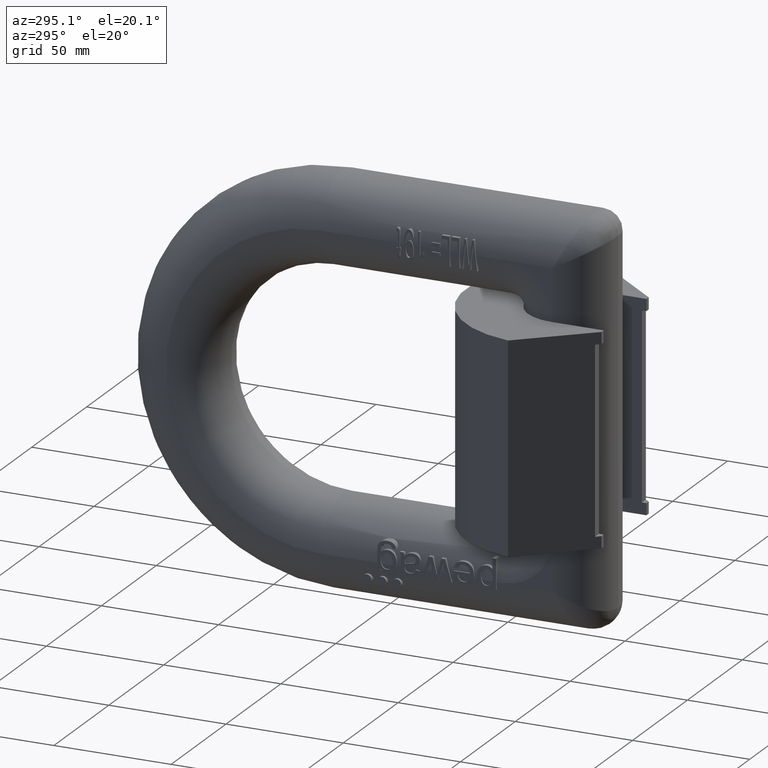
[diagram: clean part render]
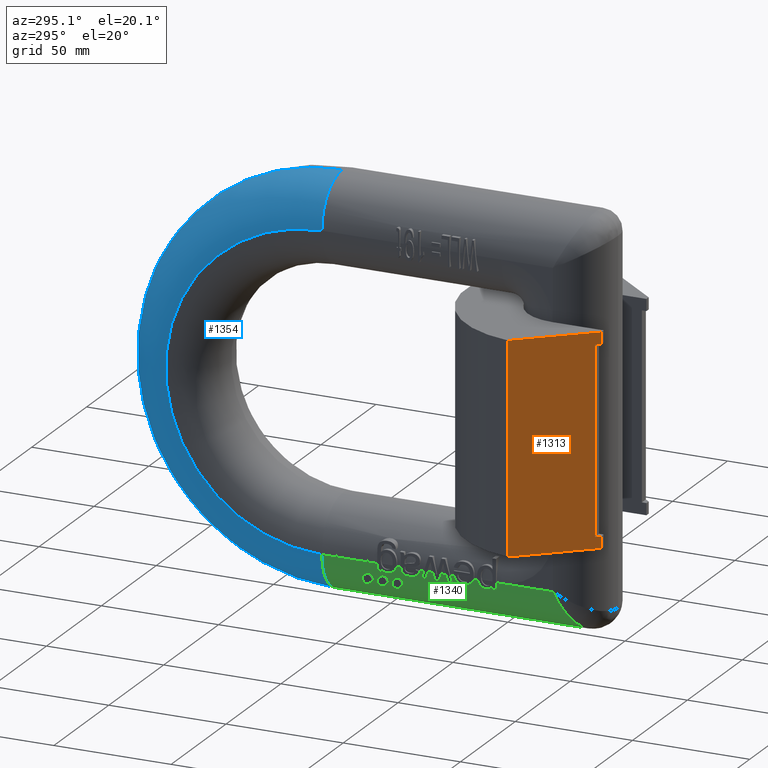
[diagram: same view with three faces highlighted in distinct colors, each labeled with its STEP entity id]
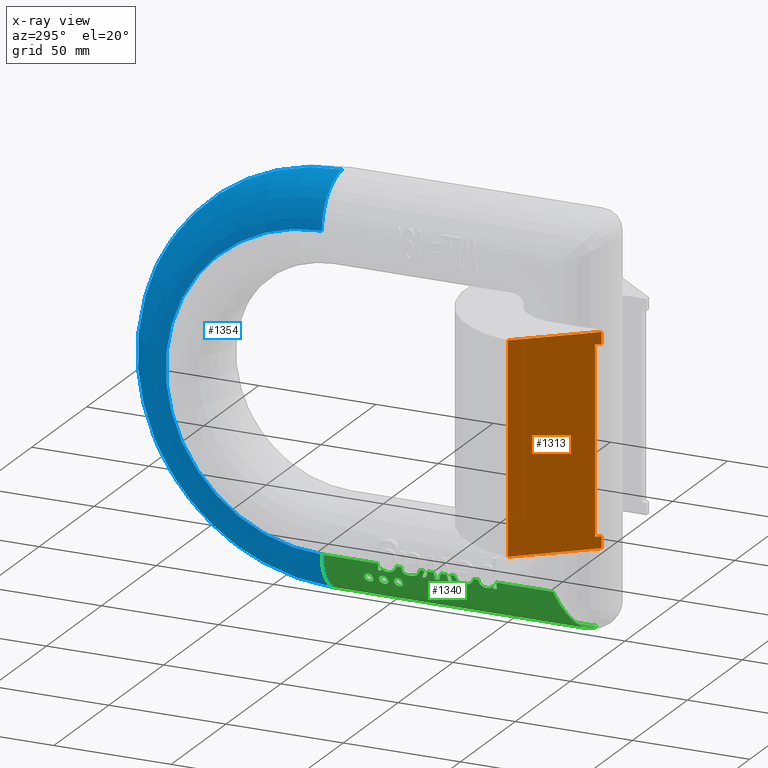
[diagram: x-ray of the same camera — body ghosted, the three highlighted faces saturated]
A machine part, auxiliary view with three faces highlighted in distinct colors.
The next image is the same camera in x-ray (body ghosted, the three faces saturated) — at least one of them is partly hidden behind the body in this view.
Their STEP definitions:

[orange] entity #1313 — the highlighted planar face has unit normal (-0.766, -0.6428, 0).
#1065=PLANE('',#9032);
#1313=ADVANCED_FACE('',(#1843),#1065,.T.);
#1843=FACE_OUTER_BOUND('',#2293,.T.);
#2293=EDGE_LOOP('',(#2966,#2967,#2968,#2969,#2970,#2971,#2972,#2973));
#2966=ORIENTED_EDGE('',*,*,#6386,.T.);
#2967=ORIENTED_EDGE('',*,*,#6382,.T.);
#2968=ORIENTED_EDGE('',*,*,#6394,.F.);
#2969=ORIENTED_EDGE('',*,*,#6424,.F.);
#2970=ORIENTED_EDGE('',*,*,#6407,.F.);
#2971=ORIENTED_EDGE('',*,*,#6401,.F.);
#2972=ORIENTED_EDGE('',*,*,#6404,.T.);
#2973=ORIENTED_EDGE('',*,*,#6426,.F.);
#5510=VERTEX_POINT('',#11219);
#5511=VERTEX_POINT('',#11220);
#5514=VERTEX_POINT('',#11228);
#5520=VERTEX_POINT('',#11242);
#5526=VERTEX_POINT('',#11256);
#5528=VERTEX_POINT('',#11259);
#5530=VERTEX_POINT('',#11265);
#5532=VERTEX_POINT('',#11271);
#6382=EDGE_CURVE('',#5510,#5511,#7698,.T.);
#6386=EDGE_CURVE('',#5514,#5510,#7700,.T.);
#6394=EDGE_CURVE('',#5520,#5511,#7707,.T.);
#6401=EDGE_CURVE('',#5526,#5528,#7713,.T.);
#6404=EDGE_CURVE('',#5526,#5530,#7716,.T.);
#6407=EDGE_CURVE('',#5528,#5532,#7719,.T.);
#6424=EDGE_CURVE('',#5532,#5520,#7736,.T.);
#6426=EDGE_CURVE('',#5514,#5530,#7738,.T.);
#7698=LINE('',#11218,#8276);
#7700=LINE('',#11227,#8278);
#7707=LINE('',#11244,#8285);
#7713=LINE('',#11258,#8291);
#7716=LINE('',#11264,#8294);
#7719=LINE('',#11270,#8297);
#7736=LINE('',#11303,#8314);
#7738=LINE('',#11306,#8316);
#8276=VECTOR('',#9503,1.);
#8278=VECTOR('',#9511,1.);
#8285=VECTOR('',#9522,1.);
#8291=VECTOR('',#9532,1.);
#8294=VECTOR('',#9537,1.);
#8297=VECTOR('',#9542,1.);
#8314=VECTOR('',#9571,1.);
#8316=VECTOR('',#9575,1.);
#9032=AXIS2_PLACEMENT_3D('',#11315,#9589,#9590);
#9503=DIRECTION('',(0.,0.,-1.));
#9511=DIRECTION('',(-0.642787609686539,0.766044443118978,0.));
#9522=DIRECTION('',(-0.642787609686539,0.766044443118978,0.));
#9532=DIRECTION('',(0.,0.,-1.));
#9537=DIRECTION('',(0.642787609686539,-0.766044443118978,0.));
#9542=DIRECTION('',(0.642787609686539,-0.766044443118978,0.));
#9571=DIRECTION('',(0.,0.,-1.));
#9575=DIRECTION('',(0.,0.,-1.));
#9589=DIRECTION('',(-0.766044443118978,-0.642787609686539,0.));
#9590=DIRECTION('',(0.642787609686539,-0.766044443118978,0.));
#11218=CARTESIAN_POINT('',(-45.5202505487029,28.6262198864297,44.5));
#11219=CARTESIAN_POINT('',(-45.5202505487029,28.6262198864297,44.5));
#11220=CARTESIAN_POINT('',(-45.5202505487029,28.6262198864297,-44.5));
#11227=CARTESIAN_POINT('',(-23.4496031930538,2.32344660945499,44.5));
#11228=CARTESIAN_POINT('',(-21.5,0.,44.5));
#11242=CARTESIAN_POINT('',(-21.5,0.,-44.5));
#11244=CARTESIAN_POINT('',(-23.4496031930538,2.32344660945499,-44.5));
#11256=CARTESIAN_POINT('',(-23.1781992623545,1.99999999999997,39.5));
#11258=CARTESIAN_POINT('',(-23.1781992623545,1.99999999999997,39.5));
#11259=CARTESIAN_POINT('',(-23.1781992623545,1.99999999999997,-39.5));
#11264=CARTESIAN_POINT('',(-12.6167179099195,-10.5866833448812,39.5));
#11265=CARTESIAN_POINT('',(-21.5,0.,39.5));
#11270=CARTESIAN_POINT('',(-12.6167179099195,-10.5866833448812,-39.5));
#11271=CARTESIAN_POINT('',(-21.5,-1.46184126872659E-17,-39.5));
#11303=CARTESIAN_POINT('',(-21.5,0.,48.9500275));
#11306=CARTESIAN_POINT('',(-21.5,0.,48.9500275));
#11315=CARTESIAN_POINT('',(-21.5,0.,48.9500275));

[blue] entity #1354 — the highlighted toroidal blend (fillet) surface has major radius 66.6 mm and minor (blend) radius 18.9 mm.
#179=TOROIDAL_SURFACE('',#9156,66.6,18.9);
#1354=ADVANCED_FACE('',(#1881),#179,.T.);
#1881=FACE_OUTER_BOUND('',#2339,.T.);
#2339=EDGE_LOOP('',(#3324,#3325,#3326,#3327));
#2785=CIRCLE('',#9048,85.5);
#2807=CIRCLE('',#9093,66.6);
#2809=CIRCLE('',#9102,18.9);
#2823=CIRCLE('',#9124,18.9);
#3324=ORIENTED_EDGE('',*,*,#6641,.T.);
#3325=ORIENTED_EDGE('',*,*,#6558,.F.);
#3326=ORIENTED_EDGE('',*,*,#6573,.F.);
#3327=ORIENTED_EDGE('',*,*,#6458,.F.);
#5561=VERTEX_POINT('',#11367);
#5563=VERTEX_POINT('',#11373);
#5647=VERTEX_POINT('',#11710);
#5648=VERTEX_POINT('',#11712);
#6458=EDGE_CURVE('',#5563,#5561,#2785,.T.);
#6558=EDGE_CURVE('',#5647,#5648,#2807,.T.);
#6573=EDGE_CURVE('',#5561,#5647,#2809,.T.);
#6641=EDGE_CURVE('',#5563,#5648,#2823,.T.);
#9048=AXIS2_PLACEMENT_3D('',#11374,#9642,#9643);
#9093=AXIS2_PLACEMENT_3D('',#11711,#9782,#9783);
#9102=AXIS2_PLACEMENT_3D('',#11745,#9807,#9808);
#9124=AXIS2_PLACEMENT_3D('',#12183,#9869,#9870);
#9156=AXIS2_PLACEMENT_3D('',#12855,#9954,#9955);
#9642=DIRECTION('',(1.,0.,0.));
#9643=DIRECTION('',(0.,0.,1.));
#9782=DIRECTION('',(-1.,0.,0.));
#9783=DIRECTION('',(0.,0.,1.));
#9807=DIRECTION('',(0.,-1.,0.));
#9808=DIRECTION('',(0.,0.,-1.));
#9869=DIRECTION('',(0.,1.,0.));
#9870=DIRECTION('',(0.,0.,1.));
#9954=DIRECTION('',(-1.,0.,0.));
#9955=DIRECTION('',(0.,0.,1.));
#11367=CARTESIAN_POINT('',(-0.0999999999999994,120.5,85.5));
#11373=CARTESIAN_POINT('',(-0.0999999999999994,120.5,-85.5));
#11374=CARTESIAN_POINT('',(-0.0999999999999994,120.5,0.));
#11710=CARTESIAN_POINT('',(-19.,120.5,66.6));
#11711=CARTESIAN_POINT('',(-19.,120.5,0.));
#11712=CARTESIAN_POINT('',(-19.,120.5,-66.6));
#11745=CARTESIAN_POINT('',(-0.0999999999999994,120.5,66.6));
#12183=CARTESIAN_POINT('',(-0.0999999999999994,120.5,-66.6));
#12855=CARTESIAN_POINT('',(-0.0999999999999994,120.5,0.));

[green] entity #1340 — the highlighted cylindrical surface (partial cylindrical patch) has radius 18.9 mm, axis along (0, 1, 0).
#195=FACE_BOUND('',#2322,.T.);
#196=FACE_BOUND('',#2323,.T.);
#197=FACE_BOUND('',#2324,.T.);
#198=FACE_BOUND('',#2325,.T.);
#254=ELLIPSE('',#9118,19.7957466956616,18.9);
#255=ELLIPSE('',#9119,19.6097194483775,18.9);
#256=ELLIPSE('',#9120,19.5407106279948,18.9);
#257=ELLIPSE('',#9121,19.8324421808189,18.9);
#258=ELLIPSE('',#9122,142.187757151098,18.9);
#259=ELLIPSE('',#9125,21.3358852640335,18.9);
#347=B_SPLINE_CURVE_WITH_KNOTS('',3,(#11961,#11962,#11963,#11964,#11965,
#11966,#11967,#11968,#11969,#11970,#11971,#11972,#11973,#11974,#11975,#11976,
#11977,#11978,#11979,#11980,#11981,#11982,#11983,#11984,#11985,#11986,#11987,
#11988,#11989,#11990,#11991,#11992,#11993,#11994,#11995,#11996,#11997,#11998,
#11999,#12000,#12001,#12002,#12003,#12004,#12005,#12006,#12007,#12008,#12009,
#12010,#12011,#12012,#12013,#12014,#12015,#12016,#12017,#12018),
 .UNSPECIFIED.,.T.,.F.,(1,3,3,3,3,3,3,3,3,3,3,3,3,3,3,3,3,3,3,3,3,1),(-0.029145250167857,
0.,0.0476612080218704,0.0951530764495043,0.145130585117094,0.20047670285001,
0.259977056874677,0.320036639998184,0.377389936324416,0.431291938532448,
0.482734047581275,0.532933986330721,0.582819489933847,0.633168334785339,
0.684850036378347,0.738873616524706,0.796014757772482,0.855863960728396,
0.915638742646773,0.970854749832143,1.,1.04766120802187),.UNSPECIFIED.);
#348=B_SPLINE_CURVE_WITH_KNOTS('',3,(#12026,#12027,#12028,#12029,#12030,
#12031,#12032,#12033,#12034,#12035),.UNSPECIFIED.,.F.,.F.,(4,3,3,4),(0.,
0.275216928750496,0.550192957856796,1.),.UNSPECIFIED.);
#349=B_SPLINE_CURVE_WITH_KNOTS('',3,(#12037,#12038,#12039,#12040,#12041,
#12042,#12043,#12044,#12045,#12046,#12047,#12048,#12049),.UNSPECIFIED.,
 .F.,.F.,(4,3,3,3,4),(0.,0.322270608418438,0.642712611835654,0.909671209587515,
1.),.UNSPECIFIED.);
#350=B_SPLINE_CURVE_WITH_KNOTS('',3,(#12051,#12052,#12053,#12054),
 .UNSPECIFIED.,.F.,.F.,(4,4),(0.,1.),.UNSPECIFIED.);
#351=B_SPLINE_CURVE_WITH_KNOTS('',3,(#12058,#12059,#12060,#12061,#12062,
#12063,#12064,#12065,#12066,#12067),.UNSPECIFIED.,.F.,.F.,(4,2,2,2,4),(0.,
0.25,0.5,0.75,1.),.UNSPECIFIED.);
#352=B_SPLINE_CURVE_WITH_KNOTS('',3,(#12075,#12076,#12077,#12078),
 .UNSPECIFIED.,.F.,.F.,(4,4),(0.,1.),.UNSPECIFIED.);
#353=B_SPLINE_CURVE_WITH_KNOTS('',3,(#12090,#12091,#12092,#12093),
 .UNSPECIFIED.,.F.,.F.,(4,4),(0.,1.),.UNSPECIFIED.);
#354=B_SPLINE_CURVE_WITH_KNOTS('',3,(#12103,#12104,#12105,#12106,#12107,
#12108,#12109,#12110,#12111,#12112),.UNSPECIFIED.,.F.,.F.,(4,3,3,4),(0.,
0.28896218980566,0.577252958959153,1.),.UNSPECIFIED.);
#355=B_SPLINE_CURVE_WITH_KNOTS('',3,(#12114,#12115,#12116,#12117,#12118,
#12119,#12120,#12121,#12122,#12123),.UNSPECIFIED.,.F.,.F.,(4,3,3,4),(0.,
0.285230832041793,0.570959805638734,1.),.UNSPECIFIED.);
#356=B_SPLINE_CURVE_WITH_KNOTS('',3,(#12125,#12126,#12127,#12128,#12129,
#12130),.UNSPECIFIED.,.F.,.F.,(4,2,4),(0.,0.5,1.),.UNSPECIFIED.);
#357=B_SPLINE_CURVE_WITH_KNOTS('',3,(#12132,#12133,#12134,#12135,#12136,
#12137,#12138,#12139,#12140,#12141),.UNSPECIFIED.,.F.,.F.,(4,3,3,4),(0.,
0.30576446401451,0.609705076223032,1.),.UNSPECIFIED.);
#358=B_SPLINE_CURVE_WITH_KNOTS('',3,(#12143,#12144,#12145,#12146,#12147,
#12148,#12149,#12150,#12151,#12152),.UNSPECIFIED.,.F.,.F.,(4,3,3,4),(0.,
0.277703927595994,0.555681236900917,1.),.UNSPECIFIED.);
#359=B_SPLINE_CURVE_WITH_KNOTS('',3,(#12154,#12155,#12156,#12157),
 .UNSPECIFIED.,.F.,.F.,(4,4),(0.,1.),.UNSPECIFIED.);
#360=B_SPLINE_CURVE_WITH_KNOTS('',3,(#12161,#12162,#12163,#12164),
 .UNSPECIFIED.,.F.,.F.,(4,4),(0.,1.),.UNSPECIFIED.);
#361=B_SPLINE_CURVE_WITH_KNOTS('',3,(#12166,#12167,#12168,#12169,#12170,
#12171,#12172,#12173),.UNSPECIFIED.,.F.,.F.,(4,2,2,4),(0.,0.25,0.5,1.),
 .UNSPECIFIED.);
#362=B_SPLINE_CURVE_WITH_KNOTS('',3,(#12179,#12180,#12181,#12182),
 .UNSPECIFIED.,.F.,.F.,(4,4),(0.,1.),.UNSPECIFIED.);
#363=B_SPLINE_CURVE_WITH_KNOTS('',3,(#12185,#12186,#12187,#12188,#12189,
#12190,#12191,#12192,#12193,#12194,#12195,#12196,#12197,#12198,#12199,#12200,
#12201,#12202,#12203,#12204,#12205,#12206,#12207,#12208,#12209,#12210,#12211,
#12212,#12213,#12214,#12215,#12216,#12217,#12218,#12219,#12220,#12221,#12222,
#12223,#12224,#12225,#12226,#12227,#12228,#12229,#12230,#12231,#12232,#12233,
#12234,#12235,#12236,#12237,#12238,#12239,#12240,#12241,#12242),
 .UNSPECIFIED.,.T.,.F.,(1,3,3,3,3,3,3,3,3,3,3,3,3,3,3,3,3,3,3,3,3,1),(-0.029145250167857,
0.,0.0476612080218704,0.0951530764495043,0.145130585117094,0.20047670285001,
0.259977056874677,0.320036639998184,0.377389936324416,0.431291938532448,
0.482734047581275,0.532933986330721,0.582819489933847,0.633168334785339,
0.684850036378347,0.738873616524706,0.796014757772482,0.855863960728396,
0.915638742646773,0.970854749832143,1.,1.04766120802187),.UNSPECIFIED.);
#364=B_SPLINE_CURVE_WITH_KNOTS('',3,(#12244,#12245,#12246,#12247,#12248,
#12249,#12250,#12251,#12252,#12253,#12254,#12255,#12256,#12257,#12258,#12259,
#12260,#12261,#12262,#12263,#12264,#12265,#12266,#12267,#12268,#12269,#12270,
#12271,#12272,#12273,#12274,#12275,#12276,#12277,#12278,#12279,#12280,#12281,
#12282,#12283,#12284,#12285,#12286,#12287,#12288,#12289,#12290,#12291,#12292,
#12293,#12294,#12295,#12296,#12297,#12298,#12299,#12300,#12301),
 .UNSPECIFIED.,.T.,.F.,(1,3,3,3,3,3,3,3,3,3,3,3,3,3,3,3,3,3,3,3,3,1),(-0.029145250167857,
0.,0.0476612080218704,0.0951530764495043,0.145130585117094,0.20047670285001,
0.259977056874677,0.320036639998184,0.377389936324416,0.431291938532448,
0.482734047581275,0.532933986330721,0.582819489933847,0.633168334785339,
0.684850036378347,0.738873616524706,0.796014757772482,0.855863960728396,
0.915638742646773,0.970854749832143,1.,1.04766120802187),.UNSPECIFIED.);
#1340=ADVANCED_FACE('',(#195,#196,#197,#198),#1780,.T.);
#1780=CYLINDRICAL_SURFACE('',#9126,18.9);
#2322=EDGE_LOOP('',(#3183));
#2323=EDGE_LOOP('',(#3184,#3185,#3186,#3187,#3188,#3189,#3190,#3191,#3192,
#3193,#3194,#3195,#3196,#3197,#3198,#3199,#3200,#3201,#3202,#3203,#3204,
#3205,#3206,#3207,#3208,#3209,#3210,#3211,#3212,#3213,#3214,#3215,#3216,
#3217,#3218,#3219,#3220,#3221,#3222));
#2324=EDGE_LOOP('',(#3223));
#2325=EDGE_LOOP('',(#3224));
#2820=CIRCLE('',#9116,18.9);
#2821=CIRCLE('',#9117,18.9);
#2822=CIRCLE('',#9123,18.9);
#2823=CIRCLE('',#9124,18.9);
#3183=ORIENTED_EDGE('',*,*,#6606,.T.);
#3184=ORIENTED_EDGE('',*,*,#6607,.F.);
#3185=ORIENTED_EDGE('',*,*,#6608,.F.);
#3186=ORIENTED_EDGE('',*,*,#6609,.F.);
#3187=ORIENTED_EDGE('',*,*,#6610,.F.);
#3188=ORIENTED_EDGE('',*,*,#6611,.F.);
#3189=ORIENTED_EDGE('',*,*,#6612,.F.);
#3190=ORIENTED_EDGE('',*,*,#6613,.F.);
#3191=ORIENTED_EDGE('',*,*,#6614,.F.);
#3192=ORIENTED_EDGE('',*,*,#6615,.F.);
#3193=ORIENTED_EDGE('',*,*,#6616,.F.);
#3194=ORIENTED_EDGE('',*,*,#6617,.F.);
#3195=ORIENTED_EDGE('',*,*,#6618,.F.);
#3196=ORIENTED_EDGE('',*,*,#6619,.F.);
#3197=ORIENTED_EDGE('',*,*,#6620,.F.);
#3198=ORIENTED_EDGE('',*,*,#6621,.F.);
#3199=ORIENTED_EDGE('',*,*,#6622,.F.);
#3200=ORIENTED_EDGE('',*,*,#6623,.F.);
#3201=ORIENTED_EDGE('',*,*,#6624,.F.);
#3202=ORIENTED_EDGE('',*,*,#6625,.F.);
#3203=ORIENTED_EDGE('',*,*,#6626,.F.);
#3204=ORIENTED_EDGE('',*,*,#6627,.F.);
#3205=ORIENTED_EDGE('',*,*,#6628,.F.);
#3206=ORIENTED_EDGE('',*,*,#6629,.F.);
#3207=ORIENTED_EDGE('',*,*,#6630,.F.);
#3208=ORIENTED_EDGE('',*,*,#6631,.F.);
#3209=ORIENTED_EDGE('',*,*,#6632,.F.);
#3210=ORIENTED_EDGE('',*,*,#6633,.F.);
#3211=ORIENTED_EDGE('',*,*,#6634,.F.);
#3212=ORIENTED_EDGE('',*,*,#6635,.F.);
#3213=ORIENTED_EDGE('',*,*,#6636,.F.);
#3214=ORIENTED_EDGE('',*,*,#6637,.F.);
#3215=ORIENTED_EDGE('',*,*,#6638,.F.);
#3216=ORIENTED_EDGE('',*,*,#6639,.F.);
#3217=ORIENTED_EDGE('',*,*,#6640,.F.);
#3218=ORIENTED_EDGE('',*,*,#6559,.F.);
#3219=ORIENTED_EDGE('',*,*,#6641,.F.);
#3220=ORIENTED_EDGE('',*,*,#6461,.F.);
#3221=ORIENTED_EDGE('',*,*,#6642,.F.);
#3222=ORIENTED_EDGE('',*,*,#6473,.F.);
#3223=ORIENTED_EDGE('',*,*,#6643,.T.);
#3224=ORIENTED_EDGE('',*,*,#6644,.T.);
#5563=VERTEX_POINT('',#11373);
#5565=VERTEX_POINT('',#11379);
#5573=VERTEX_POINT('',#11402);
#5574=VERTEX_POINT('',#11404);
#5648=VERTEX_POINT('',#11712);
#5649=VERTEX_POINT('',#11714);
#5685=VERTEX_POINT('',#12019);
#5686=VERTEX_POINT('',#12021);
#5687=VERTEX_POINT('',#12023);
#5688=VERTEX_POINT('',#12025);
#5689=VERTEX_POINT('',#12036);
#5690=VERTEX_POINT('',#12050);
#5691=VERTEX_POINT('',#12055);
#5692=VERTEX_POINT('',#12057);
#5693=VERTEX_POINT('',#12068);
#5694=VERTEX_POINT('',#12070);
#5695=VERTEX_POINT('',#12072);
#5696=VERTEX_POINT('',#12074);
#5697=VERTEX_POINT('',#12079);
#5698=VERTEX_POINT('',#12081);
#5699=VERTEX_POINT('',#12083);
#5700=VERTEX_POINT('',#12085);
#5701=VERTEX_POINT('',#12087);
#5702=VERTEX_POINT('',#12089);
#5703=VERTEX_POINT('',#12094);
#5704=VERTEX_POINT('',#12096);
#5705=VERTEX_POINT('',#12098);
#5706=VERTEX_POINT('',#12100);
#5707=VERTEX_POINT('',#12102);
#5708=VERTEX_POINT('',#12113);
#5709=VERTEX_POINT('',#12124);
#5710=VERTEX_POINT('',#12131);
#5711=VERTEX_POINT('',#12142);
#5712=VERTEX_POINT('',#12153);
#5713=VERTEX_POINT('',#12158);
#5714=VERTEX_POINT('',#12160);
#5715=VERTEX_POINT('',#12165);
#5716=VERTEX_POINT('',#12174);
#5717=VERTEX_POINT('',#12176);
#5718=VERTEX_POINT('',#12178);
#5719=VERTEX_POINT('',#12243);
#5720=VERTEX_POINT('',#12302);
#6461=EDGE_CURVE('',#5565,#5563,#7765,.T.);
#6473=EDGE_CURVE('',#5573,#5574,#7771,.T.);
#6559=EDGE_CURVE('',#5648,#5649,#7813,.T.);
#6606=EDGE_CURVE('',#5685,#5685,#347,.T.);
#6607=EDGE_CURVE('',#5686,#5573,#2820,.T.);
#6608=EDGE_CURVE('',#5687,#5686,#7827,.T.);
#6609=EDGE_CURVE('',#5688,#5687,#2821,.T.);
#6610=EDGE_CURVE('',#5689,#5688,#348,.T.);
#6611=EDGE_CURVE('',#5690,#5689,#349,.T.);
#6612=EDGE_CURVE('',#5691,#5690,#350,.T.);
#6613=EDGE_CURVE('',#5692,#5691,#7828,.T.);
#6614=EDGE_CURVE('',#5693,#5692,#351,.T.);
#6615=EDGE_CURVE('',#5694,#5693,#7829,.T.);
#6616=EDGE_CURVE('',#5695,#5694,#254,.T.);
#6617=EDGE_CURVE('',#5696,#5695,#7830,.T.);
#6618=EDGE_CURVE('',#5697,#5696,#352,.T.);
#6619=EDGE_CURVE('',#5698,#5697,#7831,.T.);
#6620=EDGE_CURVE('',#5699,#5698,#255,.T.);
#6621=EDGE_CURVE('',#5700,#5699,#7832,.T.);
#6622=EDGE_CURVE('',#5701,#5700,#256,.T.);
#6623=EDGE_CURVE('',#5702,#5701,#7833,.T.);
#6624=EDGE_CURVE('',#5703,#5702,#353,.T.);
#6625=EDGE_CURVE('',#5704,#5703,#7834,.T.);
#6626=EDGE_CURVE('',#5705,#5704,#257,.T.);
#6627=EDGE_CURVE('',#5706,#5705,#7835,.T.);
#6628=EDGE_CURVE('',#5707,#5706,#258,.T.);
#6629=EDGE_CURVE('',#5708,#5707,#354,.T.);
#6630=EDGE_CURVE('',#5709,#5708,#355,.T.);
#6631=EDGE_CURVE('',#5710,#5709,#356,.T.);
#6632=EDGE_CURVE('',#5711,#5710,#357,.T.);
#6633=EDGE_CURVE('',#5712,#5711,#358,.T.);
#6634=EDGE_CURVE('',#5713,#5712,#359,.T.);
#6635=EDGE_CURVE('',#5714,#5713,#7836,.T.);
#6636=EDGE_CURVE('',#5715,#5714,#360,.T.);
#6637=EDGE_CURVE('',#5716,#5715,#361,.T.);
#6638=EDGE_CURVE('',#5717,#5716,#2822,.T.);
#6639=EDGE_CURVE('',#5718,#5717,#7837,.T.);
#6640=EDGE_CURVE('',#5649,#5718,#362,.T.);
#6641=EDGE_CURVE('',#5563,#5648,#2823,.T.);
#6642=EDGE_CURVE('',#5574,#5565,#259,.T.);
#6643=EDGE_CURVE('',#5719,#5719,#363,.T.);
#6644=EDGE_CURVE('',#5720,#5720,#364,.T.);
#7765=LINE('',#11380,#8343);
#7771=LINE('',#11403,#8349);
#7813=LINE('',#11713,#8391);
#7827=LINE('',#12022,#8405);
#7828=LINE('',#12056,#8406);
#7829=LINE('',#12069,#8407);
#7830=LINE('',#12073,#8408);
#7831=LINE('',#12080,#8409);
#7832=LINE('',#12084,#8410);
#7833=LINE('',#12088,#8411);
#7834=LINE('',#12095,#8412);
#7835=LINE('',#12099,#8413);
#7836=LINE('',#12159,#8414);
#7837=LINE('',#12177,#8415);
#8343=VECTOR('',#9648,1.);
#8349=VECTOR('',#9672,1.);
#8391=VECTOR('',#9784,1.);
#8405=VECTOR('',#9844,1.);
#8406=VECTOR('',#9847,1.);
#8407=VECTOR('',#9848,1.);
#8408=VECTOR('',#9851,1.);
#8409=VECTOR('',#9852,1.);
#8410=VECTOR('',#9855,1.);
#8411=VECTOR('',#9858,1.);
#8412=VECTOR('',#9859,1.);
#8413=VECTOR('',#9862,1.);
#8414=VECTOR('',#9865,1.);
#8415=VECTOR('',#9868,1.);
#9116=AXIS2_PLACEMENT_3D('',#12020,#9842,#9843);
#9117=AXIS2_PLACEMENT_3D('',#12024,#9845,#9846);
#9118=AXIS2_PLACEMENT_3D('',#12071,#9849,#9850);
#9119=AXIS2_PLACEMENT_3D('',#12082,#9853,#9854);
#9120=AXIS2_PLACEMENT_3D('',#12086,#9856,#9857);
#9121=AXIS2_PLACEMENT_3D('',#12097,#9860,#9861);
#9122=AXIS2_PLACEMENT_3D('',#12101,#9863,#9864);
#9123=AXIS2_PLACEMENT_3D('',#12175,#9866,#9867);
#9124=AXIS2_PLACEMENT_3D('',#12183,#9869,#9870);
#9125=AXIS2_PLACEMENT_3D('',#12184,#9871,#9872);
#9126=AXIS2_PLACEMENT_3D('',#12303,#9873,#9874);
#9648=DIRECTION('',(0.,1.,0.));
#9672=DIRECTION('',(0.,-1.,0.));
#9784=DIRECTION('',(0.,-1.,0.));
#9842=DIRECTION('',(0.,1.,0.));
#9843=DIRECTION('',(0.,0.,-1.));
#9844=DIRECTION('',(0.,-1.,0.));
#9845=DIRECTION('',(0.,-1.,0.));
#9846=DIRECTION('',(0.,0.,1.));
#9847=DIRECTION('',(0.,-1.,0.));
#9848=DIRECTION('',(0.,-1.,0.));
#9849=DIRECTION('',(0.,0.954750547709428,-0.297407786798778));
#9850=DIRECTION('',(0.,0.297407786798778,0.954750547709428));
#9851=DIRECTION('',(0.,-1.,0.));
#9852=DIRECTION('',(0.,-1.,0.));
#9853=DIRECTION('',(0.,0.96380777143468,0.266598161513008));
#9854=DIRECTION('',(0.,0.266598161513008,-0.96380777143468));
#9855=DIRECTION('',(0.,-1.,0.));
#9856=DIRECTION('',(0.,-0.967211498077407,0.253972277988876));
#9857=DIRECTION('',(0.,0.253972277988876,0.967211498077407));
#9858=DIRECTION('',(0.,-1.,0.));
#9859=DIRECTION('',(0.,-1.,0.));
#9860=DIRECTION('',(0.,-0.952983996004249,-0.303020631904455));
#9861=DIRECTION('',(0.,0.303020631904455,-0.952983996004248));
#9862=DIRECTION('',(0.,-1.,0.));
#9863=DIRECTION('',(0.,0.132922836527448,-0.991126389281154));
#9864=DIRECTION('',(0.,0.991126389281154,0.132922836527448));
#9865=DIRECTION('',(0.,-1.,0.));
#9866=DIRECTION('',(0.,1.,0.));
#9867=DIRECTION('',(0.,0.,-1.));
#9868=DIRECTION('',(0.,-1.,0.));
#9869=DIRECTION('',(0.,1.,0.));
#9870=DIRECTION('',(0.,0.,1.));
#9871=DIRECTION('',(0.,-0.885831535280155,0.464006994670557));
#9872=DIRECTION('',(0.,-0.464006994670557,-0.885831535280155));
#9873=DIRECTION('',(0.,1.,0.));
#9874=DIRECTION('',(0.,0.,1.));
#11373=CARTESIAN_POINT('',(-0.0999999999999994,120.5,-85.5));
#11379=CARTESIAN_POINT('',(-0.0999999999999994,12.,-85.5));
#11380=CARTESIAN_POINT('',(-0.0999999999999994,120.5,-85.5));
#11402=CARTESIAN_POINT('',(-19.,45.9166666666667,-66.6));
#11403=CARTESIAN_POINT('',(-19.,12.,-66.6));
#11404=CARTESIAN_POINT('',(-19.,21.9,-66.6));
#11712=CARTESIAN_POINT('',(-19.,120.5,-66.6));
#11713=CARTESIAN_POINT('',(-19.,12.,-66.6));
#11714=CARTESIAN_POINT('',(-19.,96.5833333333333,-66.6));
#11961=CARTESIAN_POINT('',(-16.8438214143473,88.35,-75.3666666666667));
#11962=CARTESIAN_POINT('',(-16.8438214143473,88.5459940572378,-75.3666666666667));
#11963=CARTESIAN_POINT('',(-16.8603505103731,88.7446894714339,-75.3352768952935));
#11964=CARTESIAN_POINT('',(-16.8908415760015,88.929085790433,-75.2762687354427));
#11965=CARTESIAN_POINT('',(-16.9212714796342,89.113112229055,-75.2173789399961));
#11966=CARTESIAN_POINT('',(-16.9661851409539,89.2878552052964,-75.1297344182328));
#11967=CARTESIAN_POINT('',(-17.0199716146623,89.4417683711881,-75.0216720761985));
#11968=CARTESIAN_POINT('',(-17.0765967220163,89.6038044546289,-74.9079066385946));
#11969=CARTESIAN_POINT('',(-17.1442883509629,89.7469235969012,-74.7689067048614));
#11970=CARTESIAN_POINT('',(-17.2162606877049,89.863553466213,-74.6152117919946));
#11971=CARTESIAN_POINT('',(-17.2958610797373,89.9925444610892,-74.4452273803248));
#11972=CARTESIAN_POINT('',(-17.3826218063119,90.0924464050409,-74.2530142562028));
#11973=CARTESIAN_POINT('',(-17.4686891832461,90.1574532795239,-74.0524248440217));
#11974=CARTESIAN_POINT('',(-17.56105352504,90.2272162650776,-73.8371596682152));
#11975=CARTESIAN_POINT('',(-17.6551008234313,90.2585528704466,-73.6062871566454));
#11976=CARTESIAN_POINT('',(-17.7426747989694,90.247946292735,-73.3783497945894));
#11977=CARTESIAN_POINT('',(-17.8309647928202,90.2372529940103,-73.1485487815529));
#11978=CARTESIAN_POINT('',(-17.9152434851729,90.1832920063107,-72.9149665461617));
#11979=CARTESIAN_POINT('',(-17.988628578184,90.0883443359497,-72.6997514368847));
#11980=CARTESIAN_POINT('',(-18.0587176707906,89.9976611224026,-72.4942024472262));
#11981=CARTESIAN_POINT('',(-18.1210117657982,89.8666504842041,-72.2993478807283));
#11982=CARTESIAN_POINT('',(-18.1712559100353,89.7055449763142,-72.1353147908693));
#11983=CARTESIAN_POINT('',(-18.2185239593276,89.5539821782244,-71.9809978193145));
#11984=CARTESIAN_POINT('',(-18.2566153040798,89.3712840509629,-71.8494870985551));
#11985=CARTESIAN_POINT('',(-18.2836043701997,89.1732305740478,-71.7542731891175));
#11986=CARTESIAN_POINT('',(-18.3093861804424,88.9840362856258,-71.6633183211469));
#11987=CARTESIAN_POINT('',(-18.3258549424293,88.7754362976937,-71.6028820512418));
#11988=CARTESIAN_POINT('',(-18.3323995912918,88.5654011401458,-71.5789160610983));
#11989=CARTESIAN_POINT('',(-18.3387900826217,88.3603133070972,-71.5555145837323));
#11990=CARTESIAN_POINT('',(-18.3359230589737,88.1481540351792,-71.5662027896535));
#11991=CARTESIAN_POINT('',(-18.3238920390479,87.9466856108135,-71.609965962871));
#11992=CARTESIAN_POINT('',(-18.3119320338767,87.7464063816109,-71.6534708179225));
#11993=CARTESIAN_POINT('',(-18.2905641308894,87.5512438199478,-71.73079890503));
#11994=CARTESIAN_POINT('',(-18.2605780887094,87.3768113690368,-71.8348260223132));
#11995=CARTESIAN_POINT('',(-18.2303064307013,87.2007174561485,-71.9398439936437));
#11996=CARTESIAN_POINT('',(-18.1903956348328,87.0410547720096,-72.0747823819532));
#11997=CARTESIAN_POINT('',(-18.1427013812356,86.9095334459216,-72.2276928547637));
#11998=CARTESIAN_POINT('',(-18.0937396553036,86.7745169473611,-72.38466691552));
#11999=CARTESIAN_POINT('',(-18.0352628177977,86.6655819039327,-72.5645459481649));
#12000=CARTESIAN_POINT('',(-17.9705986999961,86.589379213732,-72.7523736966879));
#12001=CARTESIAN_POINT('',(-17.9030161952578,86.5097373838169,-72.9486783883177));
#12002=CARTESIAN_POINT('',(-17.8269280163954,86.4636742629626,-73.1586086747106));
#12003=CARTESIAN_POINT('',(-17.747421819422,86.4526696493362,-73.3659813129649));
#12004=CARTESIAN_POINT('',(-17.6633828008516,86.4410376386991,-73.5851767173564));
#12005=CARTESIAN_POINT('',(-17.5733319021484,86.4681460651076,-73.8072162087207));
#12006=CARTESIAN_POINT('',(-17.4844709840962,86.5310049844034,-74.0155356248296));
#12007=CARTESIAN_POINT('',(-17.3915208542674,86.5967565525564,-74.2334415073888));
#12008=CARTESIAN_POINT('',(-17.2972838345933,86.7035065727495,-74.442457021255));
#12009=CARTESIAN_POINT('',(-17.2116185153739,86.8440147618652,-74.6251175557941));
#12010=CARTESIAN_POINT('',(-17.1261995709952,86.9841188471611,-74.8072527556876));
#12011=CARTESIAN_POINT('',(-17.046781383587,87.1625230676331,-74.9687236285173));
#12012=CARTESIAN_POINT('',(-16.9849574378366,87.3654130580758,-75.0916554524102));
#12013=CARTESIAN_POINT('',(-16.9278505386171,87.5528229377947,-75.2052078178036));
#12014=CARTESIAN_POINT('',(-16.8842367105971,87.7675486884947,-75.2891732336613));
#12015=CARTESIAN_POINT('',(-16.8619189233322,87.988782408149,-75.3320143155883));
#12016=CARTESIAN_POINT('',(-16.8499828145977,88.1071037140285,-75.3549267936988));
#12017=CARTESIAN_POINT('',(-16.8438214143473,88.2288910252296,-75.3666666666667));
#12018=CARTESIAN_POINT('',(-16.8438214143473,88.35,-75.3666666666667));
#12019=CARTESIAN_POINT('',(-16.8438214143473,88.35,-75.3666666666667));
#12020=CARTESIAN_POINT('',(-0.0999999999999994,45.9166666666667,-66.6));
#12021=CARTESIAN_POINT('',(-18.7998274520334,45.9166666666667,-69.3434382194935));
#12022=CARTESIAN_POINT('',(-18.7998274520334,12.,-69.3434382194935));
#12023=CARTESIAN_POINT('',(-18.7998274520334,47.3575030910392,-69.3434382194935));
#12024=CARTESIAN_POINT('',(-0.0999999999999994,47.3575030910392,-66.6));
#12025=CARTESIAN_POINT('',(-18.9362541995713,47.3575030910392,-68.1509763792956));
#12026=CARTESIAN_POINT('',(-18.8201901887899,48.5114910739463,-69.2008612603394));
#12027=CARTESIAN_POINT('',(-18.8297776588131,48.3847128929756,-69.1318536339042));
#12028=CARTESIAN_POINT('',(-18.8403158259183,48.2628823434612,-69.0531891427642));
#12029=CARTESIAN_POINT('',(-18.851214583298,48.1473295247224,-68.9668442388787));
#12030=CARTESIAN_POINT('',(-18.8621076951706,48.0318365618214,-68.8805440612631));
#12031=CARTESIAN_POINT('',(-18.8734034386375,47.9220682197298,-68.7862093279461));
#12032=CARTESIAN_POINT('',(-18.8845431004912,47.8185447461855,-68.6858908182807));
#12033=CARTESIAN_POINT('',(-18.9027276876404,47.6495511401507,-68.5221290537266));
#12034=CARTESIAN_POINT('',(-18.9205756801107,47.4960847357967,-68.3413884203648));
#12035=CARTESIAN_POINT('',(-18.9362541995713,47.3575030910392,-68.1509763792956));
#12036=CARTESIAN_POINT('',(-18.8201901887899,48.5114910739463,-69.2008612603394));
#12037=CARTESIAN_POINT('',(-18.8539750687677,52.1778757510683,-68.9448708109491));
#12038=CARTESIAN_POINT('',(-18.8258401850586,51.8362849616799,-69.1698899911867));
#12039=CARTESIAN_POINT('',(-18.8008895797142,51.4500063628995,-69.3379783132071));
#12040=CARTESIAN_POINT('',(-18.7860387599928,51.0521205070372,-69.4358341735808));
#12041=CARTESIAN_POINT('',(-18.7712307209318,50.655380838391,-69.5334081412093));
#12042=CARTESIAN_POINT('',(-18.7658044061932,50.2388399153618,-69.5661790563428));
#12043=CARTESIAN_POINT('',(-18.7691905172501,49.8305875457325,-69.5447114341849));
#12044=CARTESIAN_POINT('',(-18.7720110373295,49.4905266361306,-69.5268296050491));
#12045=CARTESIAN_POINT('',(-18.781649396583,49.1467988944402,-69.4671970121012));
#12046=CARTESIAN_POINT('',(-18.799354647129,48.8287953499108,-69.3466590215924));
#12047=CARTESIAN_POINT('',(-18.8054171590884,48.7199067302981,-69.3053852193874));
#12048=CARTESIAN_POINT('',(-18.8124161493635,48.6134989239041,-69.2568163775216));
#12049=CARTESIAN_POINT('',(-18.8201901887899,48.5114910739463,-69.2008612603394));
#12050=CARTESIAN_POINT('',(-18.8539750687677,52.1778757510683,-68.9448708109491));
#12051=CARTESIAN_POINT('',(-19.,53.781368852254,-66.6));
#12052=CARTESIAN_POINT('',(-19.,53.5101711637942,-67.5379407865444));
#12053=CARTESIAN_POINT('',(-18.9215615491627,52.9940200532732,-68.4043228360258));
#12054=CARTESIAN_POINT('',(-18.8539750687677,52.1778757510683,-68.9448708109491));
#12055=CARTESIAN_POINT('',(-19.,53.7813688549803,-66.6));
#12056=CARTESIAN_POINT('',(-19.,12.,-66.6));
#12057=CARTESIAN_POINT('',(-19.,55.6633909752776,-66.6));
#12058=CARTESIAN_POINT('',(-19.,63.773907054057,-66.6));
#12059=CARTESIAN_POINT('',(-19.,63.5185678842321,-67.473707250451));
#12060=CARTESIAN_POINT('',(-18.9353938206782,63.0017151642535,-68.2517423520925));
#12061=CARTESIAN_POINT('',(-18.810702415937,61.5379313669004,-69.3221183442291));
#12062=CARTESIAN_POINT('',(-18.7673121495443,60.6286640461921,-69.556601566328));
#12063=CARTESIAN_POINT('',(-18.7691780621558,58.8245189099052,-69.5447964605488));
#12064=CARTESIAN_POINT('',(-18.8137055371213,57.9118553951938,-69.2992243552944));
#12065=CARTESIAN_POINT('',(-18.9351817919151,56.4656643427267,-68.2506101646995));
#12066=CARTESIAN_POINT('',(-19.,55.9300455095572,-67.4695523131513));
#12067=CARTESIAN_POINT('',(-19.,55.6633909752776,-66.6));
#12068=CARTESIAN_POINT('',(-19.,63.773907054057,-66.6));
#12069=CARTESIAN_POINT('',(-19.,12.,-66.6));
#12070=CARTESIAN_POINT('',(-19.,65.6636881015486,-66.6));
#12071=CARTESIAN_POINT('',(-0.0999999999999994,65.6636881015486,-66.6));
#12072=CARTESIAN_POINT('',(-18.7998274520334,64.8090985011171,-69.3434382194935));
#12073=CARTESIAN_POINT('',(-18.7998274520334,12.,-69.3434382194935));
#12074=CARTESIAN_POINT('',(-18.7998274520334,66.4444643283226,-69.3434382194935));
#12075=CARTESIAN_POINT('',(-19.,67.214463999965,-66.6));
#12076=CARTESIAN_POINT('',(-19.,66.9571648967837,-67.5167331097729));
#12077=CARTESIAN_POINT('',(-18.9329987578048,66.6992344110426,-68.4357157777076));
#12078=CARTESIAN_POINT('',(-18.7998274520334,66.4444643283226,-69.3434382194935));
#12079=CARTESIAN_POINT('',(-19.,67.214463999965,-66.6));
#12080=CARTESIAN_POINT('',(-19.,12.,-66.6));
#12081=CARTESIAN_POINT('',(-19.,69.6948878559079,-66.6));
#12082=CARTESIAN_POINT('',(-0.0999999999999994,69.6948878559079,-66.6));
#12083=CARTESIAN_POINT('',(-18.7998274520334,70.4537482917941,-69.3434382194935));
#12084=CARTESIAN_POINT('',(-18.7998274520334,12.,-69.3434382194935));
#12085=CARTESIAN_POINT('',(-18.7998274520334,72.0792227934318,-69.3434382194935));
#12086=CARTESIAN_POINT('',(-0.0999999999999994,72.7996001416245,-66.6));
#12087=CARTESIAN_POINT('',(-19.,72.7996001416245,-66.6));
#12088=CARTESIAN_POINT('',(-19.,12.,-66.6));
#12089=CARTESIAN_POINT('',(-19.,75.2515000447544,-66.6));
#12090=CARTESIAN_POINT('',(-18.7998274520334,76.0786154313356,-69.3434382194935));
#12091=CARTESIAN_POINT('',(-18.9330106324464,75.8049490649214,-68.4356348377591));
#12092=CARTESIAN_POINT('',(-19.,75.5278753844094,-67.5167086184662));
#12093=CARTESIAN_POINT('',(-19.,75.2515000447544,-66.6));
#12094=CARTESIAN_POINT('',(-18.7998274520334,76.0786154313356,-69.3434382194935));
#12095=CARTESIAN_POINT('',(-18.7998274520334,12.,-69.3434382194935));
#12096=CARTESIAN_POINT('',(-18.7998274520334,77.6183651113859,-69.3434382194935));
#12097=CARTESIAN_POINT('',(-0.0999999999999994,76.7460331663088,-66.6));
#12098=CARTESIAN_POINT('',(-19.,76.7460331663088,-66.6));
#12099=CARTESIAN_POINT('',(-19.,12.,-66.6));
#12100=CARTESIAN_POINT('',(-19.,79.6169235754104,-66.6));
#12101=CARTESIAN_POINT('',(-0.0999999999999994,79.6169235754104,-66.6));
#12102=CARTESIAN_POINT('',(-18.9995852668862,78.683331164183,-66.7252067877548));
#12103=CARTESIAN_POINT('',(-18.9233866248119,79.3790210624498,-68.3000341093204));
#12104=CARTESIAN_POINT('',(-18.9350969303314,79.2739057735961,-68.1703734118788));
#12105=CARTESIAN_POINT('',(-18.9463852000729,79.1810086938152,-68.0301092210329));
#12106=CARTESIAN_POINT('',(-18.9563344604577,79.1000719403716,-67.883997942115));
#12107=CARTESIAN_POINT('',(-18.9662696950835,79.0192492858012,-67.7380926404766));
#12108=CARTESIAN_POINT('',(-18.9749355254532,78.949734806205,-67.5854757267947));
#12109=CARTESIAN_POINT('',(-18.9817852315384,78.8900199059828,-67.4295700513269));
#12110=CARTESIAN_POINT('',(-18.9918188738265,78.802547839204,-67.2011950292645));
#12111=CARTESIAN_POINT('',(-18.9980009089306,78.7353890681636,-66.9643608209408));
#12112=CARTESIAN_POINT('',(-18.9995852668862,78.683331164183,-66.7252067877548));
#12113=CARTESIAN_POINT('',(-18.9233866248119,79.3790210624498,-68.3000341093204));
#12114=CARTESIAN_POINT('',(-18.8165703057759,80.7769950760287,-69.2267843438219));
#12115=CARTESIAN_POINT('',(-18.824191353541,80.6244317913105,-69.1724822551735));
#12116=CARTESIAN_POINT('',(-18.832694574443,80.4743669827431,-69.1102548220088));
#12117=CARTESIAN_POINT('',(-18.8420212992906,80.3292564653472,-69.0385728647997));
#12118=CARTESIAN_POINT('',(-18.8513574926781,80.1839986309947,-68.9668181356924));
#12119=CARTESIAN_POINT('',(-18.8615709045449,80.0430442107774,-68.8852017910736));
#12120=CARTESIAN_POINT('',(-18.8723855043629,79.9102070476636,-68.7926108810246));
#12121=CARTESIAN_POINT('',(-18.8885173100427,79.712057940116,-68.6544958704117));
#12122=CARTESIAN_POINT('',(-18.9063234878536,79.5293995192472,-68.4889632738805));
#12123=CARTESIAN_POINT('',(-18.9233866248119,79.3790210624498,-68.3000341093204));
#12124=CARTESIAN_POINT('',(-18.8165703057759,80.7769950760287,-69.2267843438219));
#12125=CARTESIAN_POINT('',(-18.8101474010085,84.8390327758617,-69.2721497399164));
#12126=CARTESIAN_POINT('',(-18.7759201054371,84.188761896413,-69.5118061243295));
#12127=CARTESIAN_POINT('',(-18.7671633407753,83.4926713693073,-69.5575438768711));
#12128=CARTESIAN_POINT('',(-18.7694357006312,82.1146039265134,-69.5431655737999));
#12129=CARTESIAN_POINT('',(-18.7842722281172,81.4298083599865,-69.4569171458014));
#12130=CARTESIAN_POINT('',(-18.8165703057759,80.7769950760287,-69.2267843438219));
#12131=CARTESIAN_POINT('',(-18.8101474010085,84.8390327758617,-69.2721497399164));
#12132=CARTESIAN_POINT('',(-18.8961357090242,85.9369699138847,-68.5787072567579));
#12133=CARTESIAN_POINT('',(-18.8853925536403,85.8512433630132,-68.6807586369449));
#12134=CARTESIAN_POINT('',(-18.8749857882481,85.7514489265177,-68.7717353117015));
#12135=CARTESIAN_POINT('',(-18.8653606742331,85.6448969293461,-68.8519411106749));
#12136=CARTESIAN_POINT('',(-18.8557714367576,85.5387420928664,-68.9318479514733));
#12137=CARTESIAN_POINT('',(-18.846843361234,85.4249082196185,-69.0020472558147));
#12138=CARTESIAN_POINT('',(-18.8386304209165,85.3075247617488,-69.0644938523568));
#12139=CARTESIAN_POINT('',(-18.8280829043522,85.15677437049,-69.1446912586383));
#12140=CARTESIAN_POINT('',(-18.8186354772627,84.9992334548222,-69.2127170084738));
#12141=CARTESIAN_POINT('',(-18.8101474010085,84.8390327758617,-69.2721497399164));
#12142=CARTESIAN_POINT('',(-18.8961357090242,85.9369699138847,-68.5787072567579));
#12143=CARTESIAN_POINT('',(-18.9776389664725,86.4282390837509,-67.5191012194082));
#12144=CARTESIAN_POINT('',(-18.9724310903954,86.4051521824742,-67.6260670271897));
#12145=CARTESIAN_POINT('',(-18.9663539134793,86.3766842647969,-67.7320299475702));
#12146=CARTESIAN_POINT('',(-18.9595585465932,86.3420429575704,-67.8357392231469));
#12147=CARTESIAN_POINT('',(-18.9527592216174,86.3073814728606,-67.9395089061487));
#12148=CARTESIAN_POINT('',(-18.9452145411027,86.2663861675405,-68.0413949906165));
#12149=CARTESIAN_POINT('',(-18.9371783982416,86.2185826395478,-68.1397110095151));
#12150=CARTESIAN_POINT('',(-18.924393602129,86.142531433216,-68.2961231437849));
#12151=CARTESIAN_POINT('',(-18.9102134555122,86.0480141017605,-68.4449799291999));
#12152=CARTESIAN_POINT('',(-18.8961357090242,85.9369699138847,-68.5787072567579));
#12153=CARTESIAN_POINT('',(-18.9776389664725,86.4282390837509,-67.5191012194082));
#12154=CARTESIAN_POINT('',(-19.,86.5015813760035,-66.6000000048759));
#12155=CARTESIAN_POINT('',(-19.,86.4939520051447,-66.9073366434175));
#12156=CARTESIAN_POINT('',(-18.9923037001581,86.4880390880149,-67.2178987596478));
#12157=CARTESIAN_POINT('',(-18.9776389664725,86.4282390837509,-67.5191012194082));
#12158=CARTESIAN_POINT('',(-19.,86.5015813760035,-66.6000000048759));
#12159=CARTESIAN_POINT('',(-19.,12.,-66.6));
#12160=CARTESIAN_POINT('',(-19.,88.6073809672798,-66.6));
#12161=CARTESIAN_POINT('',(-18.989473491512,88.8384254137654,-67.2307069156647));
#12162=CARTESIAN_POINT('',(-18.9963253136731,88.7490690461638,-67.0254969998281));
#12163=CARTESIAN_POINT('',(-19.,88.6718004160388,-66.8144592084224));
#12164=CARTESIAN_POINT('',(-19.,88.6073809672798,-66.6));
#12165=CARTESIAN_POINT('',(-18.989473491512,88.8384254137654,-67.2307069156647));
#12166=CARTESIAN_POINT('',(-18.9291272930727,95.1227142578252,-68.235226400614));
#12167=CARTESIAN_POINT('',(-18.8858169315376,94.7163915221797,-68.7339318460171));
#12168=CARTESIAN_POINT('',(-18.8302055718095,94.1949020701784,-69.1370011637999));
#12169=CARTESIAN_POINT('',(-18.7671006431252,93.0011761290564,-69.5658606249791));
#12170=CARTESIAN_POINT('',(-18.761059968416,92.3415027536468,-69.5974485689858));
#12171=CARTESIAN_POINT('',(-18.8067511752649,90.4344324065424,-69.3031257353041));
#12172=CARTESIAN_POINT('',(-18.9500122773112,89.350032041248,-68.4125578531996));
#12173=CARTESIAN_POINT('',(-18.989473491512,88.8384254137654,-67.2307069156647));
#12174=CARTESIAN_POINT('',(-18.9291272930727,95.1227142578252,-68.235226400614));
#12175=CARTESIAN_POINT('',(-0.0999999999999994,95.1227142578252,-66.6));
#12176=CARTESIAN_POINT('',(-18.7998274520334,95.1227142578252,-69.3434382194935));
#12177=CARTESIAN_POINT('',(-18.7998274520334,12.,-69.3434382194935));
#12178=CARTESIAN_POINT('',(-18.7998274520334,96.5833333333333,-69.3434382194935));
#12179=CARTESIAN_POINT('',(-19.,96.5833333333333,-66.6));
#12180=CARTESIAN_POINT('',(-19.,96.5833333333333,-67.5169104108143));
#12181=CARTESIAN_POINT('',(-18.9329220057307,96.5833333333333,-68.436238935303));
#12182=CARTESIAN_POINT('',(-18.7998274520334,96.5833333333333,-69.3434382194935));
#12183=CARTESIAN_POINT('',(-0.0999999999999994,120.5,-66.6));
#12184=CARTESIAN_POINT('',(-0.0999999999999994,21.9,-66.6));
#12185=CARTESIAN_POINT('',(-16.8438214143473,94.6833333333333,-75.3666666666667));
#12186=CARTESIAN_POINT('',(-16.8438214143473,94.8793273905712,-75.3666666666667));
#12187=CARTESIAN_POINT('',(-16.8603505103731,95.0780228047672,-75.3352768952935));
#12188=CARTESIAN_POINT('',(-16.8908415760015,95.2624191237664,-75.2762687354427));
#12189=CARTESIAN_POINT('',(-16.9212714796342,95.4464455623883,-75.2173789399961));
#12190=CARTESIAN_POINT('',(-16.9661851409539,95.6211885386298,-75.1297344182328));
#12191=CARTESIAN_POINT('',(-17.0199716146623,95.7751017045215,-75.0216720761985));
#12192=CARTESIAN_POINT('',(-17.0765967220163,95.9371377879623,-74.9079066385946));
#12193=CARTESIAN_POINT('',(-17.1442883509629,96.0802569302346,-74.7689067048614));
#12194=CARTESIAN_POINT('',(-17.2162606877049,96.1968867995464,-74.6152117919946));
#12195=CARTESIAN_POINT('',(-17.2958610797373,96.3258777944225,-74.4452273803248));
#12196=CARTESIAN_POINT('',(-17.3826218063119,96.4257797383742,-74.2530142562028));
#12197=CARTESIAN_POINT('',(-17.4686891832461,96.4907866128573,-74.0524248440217));
#12198=CARTESIAN_POINT('',(-17.56105352504,96.560549598411,-73.8371596682152));
#12199=CARTESIAN_POINT('',(-17.6551008234313,96.5918862037799,-73.6062871566454));
#12200=CARTESIAN_POINT('',(-17.7426747989694,96.5812796260683,-73.3783497945894));
#12201=CARTESIAN_POINT('',(-17.8309647928202,96.5705863273437,-73.1485487815529));
#12202=CARTESIAN_POINT('',(-17.9152434851729,96.5166253396441,-72.9149665461617));
#12203=CARTESIAN_POINT('',(-17.988628578184,96.4216776692831,-72.6997514368847));
#12204=CARTESIAN_POINT('',(-18.0587176707906,96.3309944557359,-72.4942024472262));
#12205=CARTESIAN_POINT('',(-18.1210117657982,96.1999838175375,-72.2993478807283));
#12206=CARTESIAN_POINT('',(-18.1712559100353,96.0388783096476,-72.1353147908693));
#12207=CARTESIAN_POINT('',(-18.2185239593276,95.8873155115577,-71.9809978193145));
#12208=CARTESIAN_POINT('',(-18.2566153040798,95.7046173842963,-71.8494870985551));
#12209=CARTESIAN_POINT('',(-18.2836043701997,95.5065639073812,-71.7542731891175));
#12210=CARTESIAN_POINT('',(-18.3093861804424,95.3173696189591,-71.6633183211469));
#12211=CARTESIAN_POINT('',(-18.3258549424293,95.1087696310271,-71.6028820512418));
#12212=CARTESIAN_POINT('',(-18.3323995912918,94.8987344734792,-71.5789160610983));
#12213=CARTESIAN_POINT('',(-18.3387900826217,94.6936466404306,-71.5555145837323));
#12214=CARTESIAN_POINT('',(-18.3359230589737,94.4814873685125,-71.5662027896535));
#12215=CARTESIAN_POINT('',(-18.3238920390479,94.2800189441468,-71.609965962871));
#12216=CARTESIAN_POINT('',(-18.3119320338767,94.0797397149443,-71.6534708179225));
#12217=CARTESIAN_POINT('',(-18.2905641308894,93.8845771532812,-71.73079890503));
#12218=CARTESIAN_POINT('',(-18.2605780887094,93.7101447023701,-71.8348260223132));
#12219=CARTESIAN_POINT('',(-18.2303064307013,93.5340507894818,-71.9398439936437));
#12220=CARTESIAN_POINT('',(-18.1903956348328,93.374388105343,-72.0747823819532));
#12221=CARTESIAN_POINT('',(-18.1427013812356,93.2428667792549,-72.2276928547637));
#12222=CARTESIAN_POINT('',(-18.0937396553036,93.1078502806944,-72.38466691552));
#12223=CARTESIAN_POINT('',(-18.0352628177977,92.9989152372661,-72.5645459481649));
#12224=CARTESIAN_POINT('',(-17.9705986999961,92.9227125470653,-72.7523736966879));
#12225=CARTESIAN_POINT('',(-17.9030161952578,92.8430707171502,-72.9486783883177));
#12226=CARTESIAN_POINT('',(-17.8269280163954,92.797007596296,-73.1586086747106));
#12227=CARTESIAN_POINT('',(-17.747421819422,92.7860029826695,-73.3659813129649));
#12228=CARTESIAN_POINT('',(-17.6633828008516,92.7743709720325,-73.5851767173564));
#12229=CARTESIAN_POINT('',(-17.5733319021484,92.801479398441,-73.8072162087207));
#12230=CARTESIAN_POINT('',(-17.4844709840962,92.8643383177368,-74.0155356248296));
#12231=CARTESIAN_POINT('',(-17.3915208542674,92.9300898858897,-74.2334415073888));
#12232=CARTESIAN_POINT('',(-17.2972838345933,93.0368399060828,-74.442457021255));
#12233=CARTESIAN_POINT('',(-17.2116185153739,93.1773480951986,-74.6251175557941));
#12234=CARTESIAN_POINT('',(-17.1261995709952,93.3174521804945,-74.8072527556876));
#12235=CARTESIAN_POINT('',(-17.046781383587,93.4958564009664,-74.9687236285173));
#12236=CARTESIAN_POINT('',(-16.9849574378366,93.6987463914091,-75.0916554524102));
#12237=CARTESIAN_POINT('',(-16.9278505386171,93.8861562711281,-75.2052078178036));
#12238=CARTESIAN_POINT('',(-16.8842367105971,94.100882021828,-75.2891732336613));
#12239=CARTESIAN_POINT('',(-16.8619189233322,94.3221157414823,-75.3320143155883));
#12240=CARTESIAN_POINT('',(-16.8499828145977,94.4404370473619,-75.3549267936988));
#12241=CARTESIAN_POINT('',(-16.8438214143473,94.562224358563,-75.3666666666667));
#12242=CARTESIAN_POINT('',(-16.8438214143473,94.6833333333333,-75.3666666666667));
#12243=CARTESIAN_POINT('',(-16.8438214143473,94.6833333333333,-75.3666666666667));
#12244=CARTESIAN_POINT('',(-16.8438214143473,101.016666666667,-75.3666666666667));
#12245=CARTESIAN_POINT('',(-16.8438214143473,101.212660723905,-75.3666666666667));
#12246=CARTESIAN_POINT('',(-16.8603505103731,101.411356138101,-75.3352768952935));
#12247=CARTESIAN_POINT('',(-16.8908415760015,101.5957524571,-75.2762687354427));
#12248=CARTESIAN_POINT('',(-16.9212714796342,101.779778895722,-75.2173789399961));
#12249=CARTESIAN_POINT('',(-16.9661851409539,101.954521871963,-75.1297344182328));
#12250=CARTESIAN_POINT('',(-17.0199716146623,102.108435037855,-75.0216720761985));
#12251=CARTESIAN_POINT('',(-17.0765967220163,102.270471121296,-74.9079066385946));
#12252=CARTESIAN_POINT('',(-17.1442883509629,102.413590263568,-74.7689067048614));
#12253=CARTESIAN_POINT('',(-17.2162606877049,102.53022013288,-74.6152117919946));
#12254=CARTESIAN_POINT('',(-17.2958610797373,102.659211127756,-74.4452273803248));
#12255=CARTESIAN_POINT('',(-17.3826218063119,102.759113071708,-74.2530142562028));
#12256=CARTESIAN_POINT('',(-17.4686891832461,102.824119946191,-74.0524248440217));
#12257=CARTESIAN_POINT('',(-17.56105352504,102.893882931744,-73.8371596682152));
#12258=CARTESIAN_POINT('',(-17.6551008234313,102.925219537113,-73.6062871566454));
#12259=CARTESIAN_POINT('',(-17.7426747989694,102.914612959402,-73.3783497945894));
#12260=CARTESIAN_POINT('',(-17.8309647928202,102.903919660677,-73.1485487815529));
#12261=CARTESIAN_POINT('',(-17.9152434851729,102.849958672977,-72.9149665461617));
#12262=CARTESIAN_POINT('',(-17.988628578184,102.755011002616,-72.6997514368847));
#12263=CARTESIAN_POINT('',(-18.0587176707906,102.664327789069,-72.4942024472262));
#12264=CARTESIAN_POINT('',(-18.1210117657982,102.533317150871,-72.2993478807283));
#12265=CARTESIAN_POINT('',(-18.1712559100353,102.372211642981,-72.1353147908693));
#12266=CARTESIAN_POINT('',(-18.2185239593276,102.220648844891,-71.9809978193145));
#12267=CARTESIAN_POINT('',(-18.2566153040798,102.03795071763,-71.8494870985551));
#12268=CARTESIAN_POINT('',(-18.2836043701997,101.839897240714,-71.7542731891175));
#12269=CARTESIAN_POINT('',(-18.3093861804424,101.650702952292,-71.6633183211469));
#12270=CARTESIAN_POINT('',(-18.3258549424293,101.44210296436,-71.6028820512418));
#12271=CARTESIAN_POINT('',(-18.3323995912918,101.232067806812,-71.5789160610983));
#12272=CARTESIAN_POINT('',(-18.3387900826217,101.026979973764,-71.5555145837323));
#12273=CARTESIAN_POINT('',(-18.3359230589737,100.814820701846,-71.5662027896535));
#12274=CARTESIAN_POINT('',(-18.3238920390479,100.61335227748,-71.609965962871));
#12275=CARTESIAN_POINT('',(-18.3119320338767,100.413073048278,-71.6534708179225));
#12276=CARTESIAN_POINT('',(-18.2905641308894,100.217910486614,-71.73079890503));
#12277=CARTESIAN_POINT('',(-18.2605780887094,100.043478035703,-71.8348260223132));
#12278=CARTESIAN_POINT('',(-18.2303064307013,99.8673841228151,-71.9398439936437));
#12279=CARTESIAN_POINT('',(-18.1903956348328,99.7077214386763,-72.0747823819532));
#12280=CARTESIAN_POINT('',(-18.1427013812356,99.5762001125882,-72.2276928547637));
#12281=CARTESIAN_POINT('',(-18.0937396553036,99.4411836140277,-72.38466691552));
#12282=CARTESIAN_POINT('',(-18.0352628177977,99.3322485705994,-72.5645459481649));
#12283=CARTESIAN_POINT('',(-17.9705986999961,99.2560458803986,-72.7523736966879));
#12284=CARTESIAN_POINT('',(-17.9030161952578,99.1764040504835,-72.9486783883177));
#12285=CARTESIAN_POINT('',(-17.8269280163954,99.1303409296293,-73.1586086747106));
#12286=CARTESIAN_POINT('',(-17.747421819422,99.1193363160029,-73.3659813129649));
#12287=CARTESIAN_POINT('',(-17.6633828008516,99.1077043053658,-73.5851767173564));
#12288=CARTESIAN_POINT('',(-17.5733319021484,99.1348127317743,-73.8072162087207));
#12289=CARTESIAN_POINT('',(-17.4844709840962,99.1976716510701,-74.0155356248296));
#12290=CARTESIAN_POINT('',(-17.3915208542674,99.263423219223,-74.2334415073888));
#12291=CARTESIAN_POINT('',(-17.2972838345933,99.3701732394161,-74.442457021255));
#12292=CARTESIAN_POINT('',(-17.2116185153739,99.5106814285319,-74.6251175557941));
#12293=CARTESIAN_POINT('',(-17.1261995709952,99.6507855138278,-74.8072527556876));
#12294=CARTESIAN_POINT('',(-17.046781383587,99.8291897342997,-74.9687236285173));
#12295=CARTESIAN_POINT('',(-16.9849574378366,100.032079724742,-75.0916554524102));
#12296=CARTESIAN_POINT('',(-16.9278505386171,100.219489604461,-75.2052078178036));
#12297=CARTESIAN_POINT('',(-16.8842367105971,100.434215355161,-75.2891732336613));
#12298=CARTESIAN_POINT('',(-16.8619189233322,100.655449074816,-75.3320143155883));
#12299=CARTESIAN_POINT('',(-16.8499828145977,100.773770380695,-75.3549267936988));
#12300=CARTESIAN_POINT('',(-16.8438214143473,100.895557691896,-75.3666666666667));
#12301=CARTESIAN_POINT('',(-16.8438214143473,101.016666666667,-75.3666666666667));
#12302=CARTESIAN_POINT('',(-16.8438214143473,101.016666666667,-75.3666666666667));
#12303=CARTESIAN_POINT('',(-0.0999999999999994,12.,-66.6));